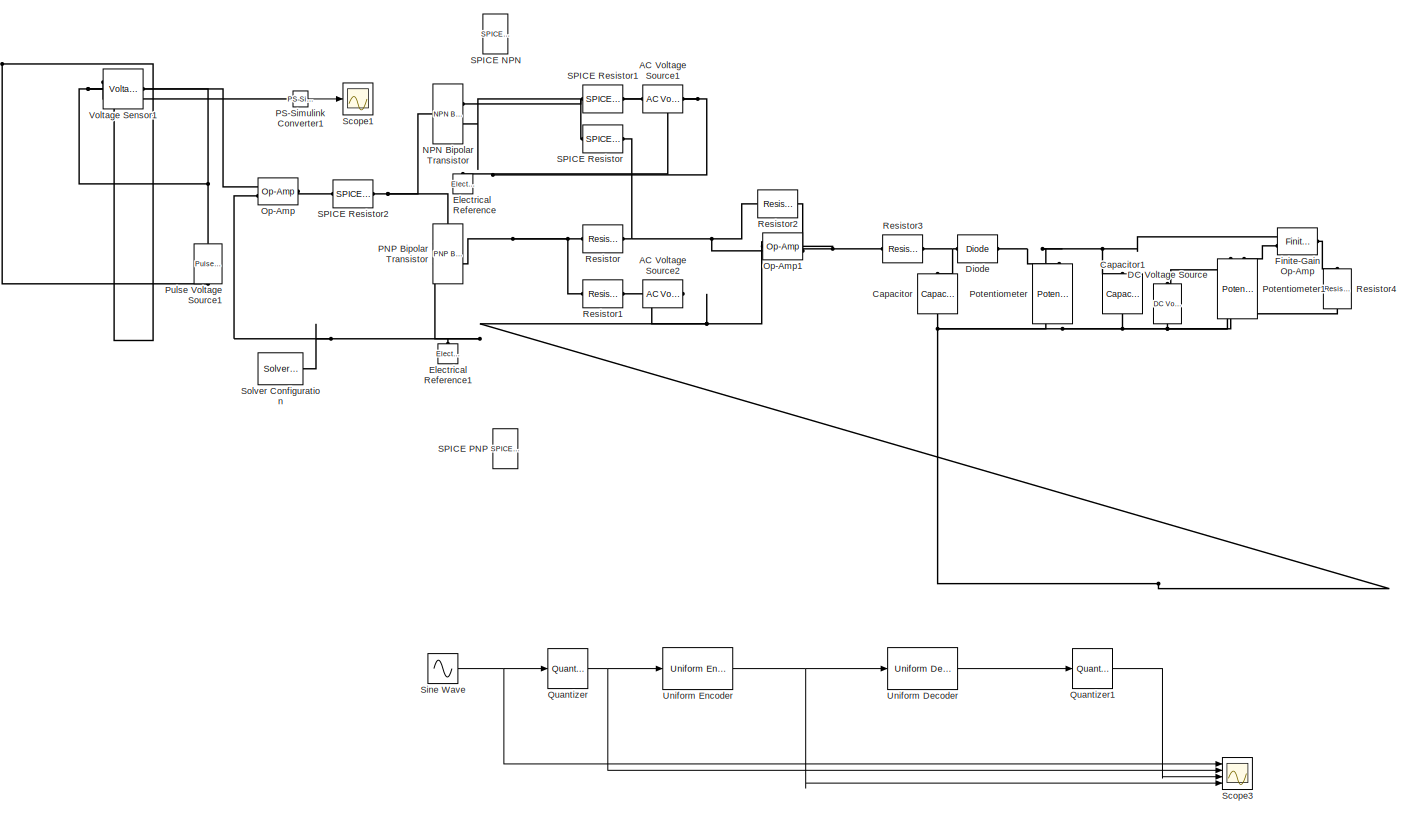
[diagram: root canvas - part 1/1, most of the canvas]
MODEL slx_265e73ff2869
KIND model
CONFIG AbsTol = auto
CONFIG EnableMultiTasking = off
CONFIG FixedStep = auto
CONFIG MaxStep = auto
CONFIG MinStep = auto
CONFIG RelTol = 1e-3
CONFIG SampleTimeConstraint = Unconstrained
CONFIG SolverName = VariableStepAuto
CONFIG StartTime = 0.0
CONFIG StopTime = 10
BLOCK [Reference] AC Voltage Source1  REF=fl_lib/Electrical/Electrical Sources/AC Voltage Source
  NameLocation = top
  Ports = [0, 0, 0, 0, 0, 1, 1]
  SourceBlock = fl_lib/Electrical/Electrical Sources/AC Voltage Source
  SourceProductBaseCode = SS
  SourceType = AC Voltage Source
BLOCK [Reference] AC Voltage Source2  REF=fl_lib/Electrical/Electrical Sources/AC Voltage Source
  NameLocation = top
  Ports = [0, 0, 0, 0, 0, 1, 1]
  SourceBlock = fl_lib/Electrical/Electrical Sources/AC Voltage Source
  SourceProductBaseCode = SS
  SourceType = AC Voltage Source
BLOCK [Reference] Capacitor  REF=fl_lib/Electrical/Electrical Elements/Capacitor
  NameLocation = left
  Ports = [0, 0, 0, 0, 0, 1, 1]
  SourceBlock = fl_lib/Electrical/Electrical Elements/Capacitor
  SourceProductBaseCode = SS
  SourceType = Capacitor
BLOCK [Reference] Capacitor1  REF=fl_lib/Electrical/Electrical Elements/Capacitor
  NameLocation = left
  Ports = [0, 0, 0, 0, 0, 1, 1]
  SourceBlock = fl_lib/Electrical/Electrical Elements/Capacitor
  SourceProductBaseCode = SS
  SourceType = Capacitor
BLOCK [Reference] DC Voltage Source  REF=ee_lib/Additional
Components/SPICE Sources/DC Voltage Source
  NameLocation = right
  Ports = [0, 0, 0, 0, 0, 1, 1]
  SourceBlock = ee_lib/Additional\nComponents/SPICE Sources/DC Voltage Source
  SourceProductBaseCode = PS
  SourceType = DC Voltage Source
BLOCK [Reference] Diode  REF=ee_lib/Semiconductors &
Converters/Diode
  Ports = [0, 0, 0, 0, 0, 1, 1]
  SourceBlock = ee_lib/Semiconductors &\nConverters/Diode
  SourceProductBaseCode = PS
  SourceType = Diode
BLOCK [Reference] Electrical Reference  REF=fl_lib/Electrical/Electrical Elements/Electrical Reference
  NameLocation = right
  Ports = [0, 0, 0, 0, 0, 1]
  SourceBlock = fl_lib/Electrical/Electrical Elements/Electrical Reference
  SourceProductBaseCode = SS
  SourceType = Electrical Reference
BLOCK [Reference] Electrical Reference1  REF=fl_lib/Electrical/Electrical Elements/Electrical Reference
  NameLocation = right
  Ports = [0, 0, 0, 0, 0, 1]
  SourceBlock = fl_lib/Electrical/Electrical Elements/Electrical Reference
  SourceProductBaseCode = SS
  SourceType = Electrical Reference
BLOCK [Reference] Finite-Gain Op-Amp  REF=ee_lib/Integrated Circuits/Finite-Gain Op-Amp
  Ports = [0, 0, 0, 0, 0, 2, 1]
  SourceBlock = ee_lib/Integrated Circuits/Finite-Gain Op-Amp
  SourceProductBaseCode = PS
  SourceType = Finite-Gain Op-Amp
BLOCK [Reference] NPN Bipolar Transistor  REF=ee_lib/Semiconductors &
Converters/NPN Bipolar
Transistor
  Ports = [0, 0, 0, 0, 0, 1, 2]
  SourceBlock = ee_lib/Semiconductors &\nConverters/NPN Bipolar\nTransistor
  SourceProductBaseCode = PS
  SourceType = NPN Bipolar\nTransistor
BLOCK [Reference] Op-Amp  REF=fl_lib/Electrical/Electrical Elements/Op-Amp
  Ports = [0, 0, 0, 0, 0, 2, 1]
  SourceBlock = fl_lib/Electrical/Electrical Elements/Op-Amp
  SourceProductBaseCode = SS
  SourceType = Op-Amp
BLOCK [Reference] Op-Amp1  REF=fl_lib/Electrical/Electrical Elements/Op-Amp
  NameLocation = top
  Ports = [0, 0, 0, 0, 0, 2, 1]
  SourceBlock = fl_lib/Electrical/Electrical Elements/Op-Amp
  SourceProductBaseCode = SS
  SourceType = Op-Amp
BLOCK [Reference] PNP Bipolar Transistor  REF=ee_lib/Semiconductors &
Converters/PNP Bipolar
Transistor
  NameLocation = top
  Ports = [0, 0, 0, 0, 0, 1, 2]
  SourceBlock = ee_lib/Semiconductors &\nConverters/PNP Bipolar\nTransistor
  SourceProductBaseCode = PS
  SourceType = PNP Bipolar\nTransistor
BLOCK [Reference] PS-Simulink Converter1  REF=nesl_utility/PS-Simulink
Converter
  Ports = [0, 1, 0, 0, 0, 1]
  SourceBlock = nesl_utility/PS-Simulink\nConverter
  SourceProductBaseCode = PW,SS
  SourceType = PS-Simulink\nConverter
BLOCK [Reference] Potentiometer  REF=ee_lib/Passive/Potentiometer
  NameLocation = left
  Ports = [0, 0, 0, 0, 0, 2, 2]
  SourceBlock = ee_lib/Passive/Potentiometer
  SourceProductBaseCode = PS
  SourceType = Potentiometer
BLOCK [Reference] Potentiometer1  REF=ee_lib/Passive/Potentiometer
  NameLocation = left
  Ports = [0, 0, 0, 0, 0, 2, 2]
  SourceBlock = ee_lib/Passive/Potentiometer
  SourceProductBaseCode = PS
  SourceType = Potentiometer
BLOCK [Reference] Pulse Voltage Source1  REF=ee_lib/Additional
Components/SPICE Sources/Pulse Voltage Source
  NameLocation = right
  Ports = [0, 0, 0, 0, 0, 1, 1]
  SourceBlock = ee_lib/Additional\nComponents/SPICE Sources/Pulse Voltage Source
  SourceProductBaseCode = PS
  SourceType = Pulse Voltage Source
BLOCK [Quantizer] Quantizer
  Commented = on
  LinearizeAsGain = off
BLOCK [Quantizer] Quantizer1
  Commented = on
  LinearizeAsGain = off
BLOCK [Reference] Resistor  REF=fl_lib/Electrical/Electrical Elements/Resistor
  Ports = [0, 0, 0, 0, 0, 1, 1]
  SourceBlock = fl_lib/Electrical/Electrical Elements/Resistor
  SourceProductBaseCode = SS
  SourceType = Resistor
BLOCK [Reference] Resistor1  REF=fl_lib/Electrical/Electrical Elements/Resistor
  Ports = [0, 0, 0, 0, 0, 1, 1]
  SourceBlock = fl_lib/Electrical/Electrical Elements/Resistor
  SourceProductBaseCode = SS
  SourceType = Resistor
BLOCK [Reference] Resistor2  REF=fl_lib/Electrical/Electrical Elements/Resistor
  Ports = [0, 0, 0, 0, 0, 1, 1]
  SourceBlock = fl_lib/Electrical/Electrical Elements/Resistor
  SourceProductBaseCode = SS
  SourceType = Resistor
BLOCK [Reference] Resistor3  REF=fl_lib/Electrical/Electrical Elements/Resistor
  Ports = [0, 0, 0, 0, 0, 1, 1]
  SourceBlock = fl_lib/Electrical/Electrical Elements/Resistor
  SourceProductBaseCode = SS
  SourceType = Resistor
BLOCK [Reference] Resistor4  REF=fl_lib/Electrical/Electrical Elements/Resistor
  NameLocation = left
  Ports = [0, 0, 0, 0, 0, 1, 1]
  SourceBlock = fl_lib/Electrical/Electrical Elements/Resistor
  SourceProductBaseCode = SS
  SourceType = Resistor
BLOCK [Reference] SPICE NPN  REF=ee_lib/Additional
Components/SPICE Semiconductors/SPICE NPN
  Commented = on
  Ports = [0, 0, 0, 0, 0, 1, 3]
  SourceBlock = ee_lib/Additional\nComponents/SPICE Semiconductors/SPICE NPN
  SourceProductBaseCode = PS
  SourceType = SPICE NPN
BLOCK [Reference] SPICE PNP  REF=ee_lib/Additional
Components/SPICE Semiconductors/SPICE PNP
  Commented = on
  Ports = [0, 0, 0, 0, 0, 1, 3]
  SourceBlock = ee_lib/Additional\nComponents/SPICE Semiconductors/SPICE PNP
  SourceProductBaseCode = PS
  SourceType = SPICE PNP
BLOCK [Reference] SPICE Resistor  REF=ee_lib/Additional
Components/SPICE Passives/SPICE Resistor
  Ports = [0, 0, 0, 0, 0, 1, 1]
  SourceBlock = ee_lib/Additional\nComponents/SPICE Passives/SPICE Resistor
  SourceProductBaseCode = PS
  SourceType = SPICE Resistor
BLOCK [Reference] SPICE Resistor1  REF=ee_lib/Additional
Components/SPICE Passives/SPICE Resistor
  Ports = [0, 0, 0, 0, 0, 1, 1]
  SourceBlock = ee_lib/Additional\nComponents/SPICE Passives/SPICE Resistor
  SourceProductBaseCode = PS
  SourceType = SPICE Resistor
BLOCK [Reference] SPICE Resistor2  REF=ee_lib/Additional
Components/SPICE Passives/SPICE Resistor
  Ports = [0, 0, 0, 0, 0, 1, 1]
  SourceBlock = ee_lib/Additional\nComponents/SPICE Passives/SPICE Resistor
  SourceProductBaseCode = PS
  SourceType = SPICE Resistor
BLOCK [Scope] Scope1
  Floating = off
  NumInputPorts = 1
  Ports = [1]
  ScopeSpecificationString = Simulink.scopes.TimeScopeBlockCfg('CurrentConfiguration', extmgr.ConfigurationSet(extmgr.Configuration('Core','General UI',true),extmgr.Configuration('Core','Source UI',true),extmgr.Configuration('Sources','WiredSimulink',true,'DataLoggingVariableName','ScopeData1'),extmgr.Configuration('Visuals','Time Domain',true,'SerializedDisplays',{struct('MinYLimReal','14.84063','MaxYLimReal','14.85269','YLa...<+1470ch>
BLOCK [Scope] Scope3
  Commented = on
  Floating = off
  NumInputPorts = 4
  Ports = [4]
  ScopeSpecificationString = Simulink.scopes.TimeScopeBlockCfg('CurrentConfiguration', extmgr.ConfigurationSet(extmgr.Configuration('Core','General UI',true),extmgr.Configuration('Core','Source UI',true),extmgr.Configuration('Sources','WiredSimulink',true,'DataLoggingVariableName','ScopeData3'),extmgr.Configuration('Visuals','Time Domain',true,'SerializedDisplays',{struct('MinYLimReal','-1.24563','MaxYLimReal','1.24904','YLab...<+3495ch>
BLOCK [Sin] Sine Wave
  Commented = on
  Ports = [0, 1]
  SampleTime = 0
BLOCK [Reference] Solver Configuration  REF=nesl_utility/Solver
Configuration
  Ports = [0, 0, 0, 0, 0, 0, 1]
  SourceBlock = nesl_utility/Solver\nConfiguration
  SourceProductBaseCode = PW,SS
  SourceType = Solver\nConfiguration
BLOCK [Reference] Uniform Decoder  REF=dspquant2/Uniform
Decoder
  Commented = on
  Ports = [1, 1]
  SourceBlock = dspquant2/Uniform\nDecoder
  SourceProductBaseCode = DS
  SourceType = Uniform Decoder
BLOCK [Reference] Uniform Encoder  REF=dspquant2/Uniform
Encoder
  Commented = on
  Ports = [1, 1]
  SourceBlock = dspquant2/Uniform\nEncoder
  SourceProductBaseCode = DS
  SourceType = Uniform Encoder
BLOCK [Reference] Voltage Sensor1  REF=fl_lib/Electrical/Electrical Sensors/Voltage Sensor
  NameLocation = top
  Ports = [0, 0, 0, 0, 0, 1, 2]
  SourceBlock = fl_lib/Electrical/Electrical Sensors/Voltage Sensor
  SourceProductBaseCode = SS
  SourceType = Voltage Sensor
LINE PS-Simulink Converter1:1 -> Scope1:1
LINE Quantizer1:1 -> Scope3:3
NET Quantizer:1 -> Scope3:2, Uniform Encoder:1
NET Sine Wave:1 -> Quantizer:1, Scope3:1
LINE Uniform Decoder:1 -> Quantizer1:1
NET Uniform Encoder:1 -> Scope3:4, Uniform Decoder:1
PLINE AC Voltage Source1:LConn1 -- SPICE Resistor1:RConn1
PNET net1: AC Voltage Source1:RConn1 -- Electrical Reference:LConn1 -- NPN Bipolar Transistor:RConn2
PLINE AC Voltage Source2:LConn1 -- Resistor1:RConn1
PNET net2: AC Voltage Source2:RConn1 -- Capacitor1:RConn1 -- Capacitor:RConn1 -- DC Voltage Source:RConn1 -- Electrical Reference1:LConn1 -- Op-Amp1:LConn1 -- Op-Amp:LConn2 -- PNP Bipolar Transistor:RConn1 -- Potentiometer1:RConn1 -- Potentiometer:RConn1 -- Pulse Voltage Source1:RConn1 -- Resistor4:RConn1 -- Solver Configuration:RConn1 -- Voltage Sensor1:RConn2
PNET net3: Capacitor1:LConn1 -- Diode:RConn1 -- Finite-Gain Op-Amp:LConn1 -- Potentiometer:LConn1 -- Potentiometer:LConn2
PNET net4: Capacitor:LConn1 -- Diode:LConn1 -- Resistor3:RConn1
PLINE DC Voltage Source:LConn1 -- Potentiometer1:LConn1
PLINE Finite-Gain Op-Amp:LConn2 -- Potentiometer1:LConn2
PLINE Finite-Gain Op-Amp:RConn1 -- Resistor4:LConn1
PNET net5: NPN Bipolar Transistor:LConn1 -- PNP Bipolar Transistor:LConn1 -- SPICE Resistor2:RConn1
PNET net6: NPN Bipolar Transistor:RConn1 -- SPICE Resistor1:LConn1 -- SPICE Resistor:LConn1
PNET net7: Op-Amp1:LConn2 -- Resistor2:LConn1 -- Resistor:RConn1 -- SPICE Resistor:RConn1
PNET net8: Op-Amp1:RConn1 -- Resistor2:RConn1 -- Resistor3:LConn1
PNET net9: Op-Amp:LConn1 -- Pulse Voltage Source1:LConn1 -- Voltage Sensor1:LConn1
PLINE Op-Amp:RConn1 -- SPICE Resistor2:LConn1
PNET net10: PNP Bipolar Transistor:RConn2 -- Resistor1:LConn1 -- Resistor:LConn1
PLINE PS-Simulink Converter1:LConn1 -- Voltage Sensor1:RConn1
note: NET lines group one-source signal fan-out (src -> all destinations, sorted); 1:1 wires keep LINE; PNET lines group multi-terminal physical nets as a canonical sorted terminal list (undirected conserving connections); 2-terminal nets keep the pairwise PLINE form
